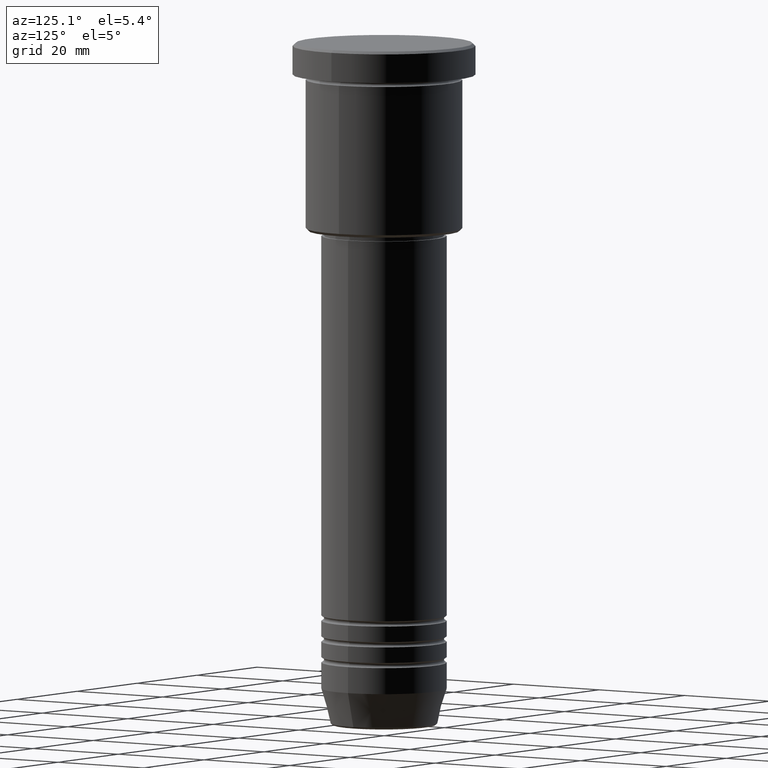
[diagram: clean part render]
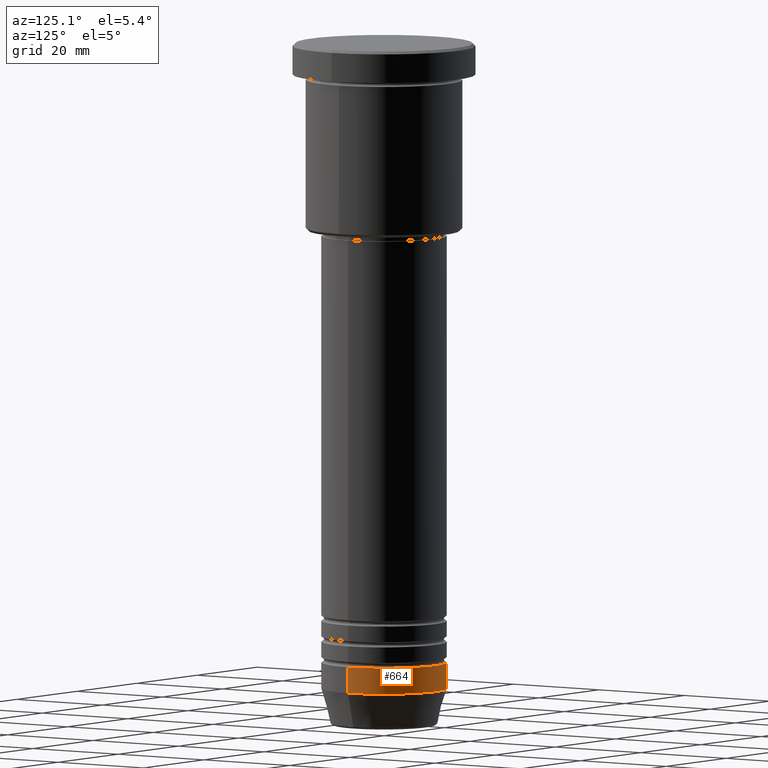
[diagram: same view with one face highlighted and labeled with its STEP entity id]
A machine part, auxiliary view. The second image highlights one B-rep face of the part: STEP entity #664.
In plain terms, the highlighted cylindrical surface (partial cylindrical patch) has radius 12 mm, axis along (-0, -0, 1).
Its self-contained STEP definition (entity closure, byte-faithful):
#8 = CARTESIAN_POINT ( 'NONE',  ( -12.00000000000000000, 1.469576158976823947E-15, 0.000000000000000000 ) ) ;
#19 = EDGE_CURVE ( 'NONE', #992, #957, #338, .T. ) ;
#20 = VERTEX_POINT ( 'NONE', #1011 ) ;
#84 = ORIENTED_EDGE ( 'NONE', *, *, #312, .F. ) ;
#174 = DIRECTION ( 'NONE',  ( 1.000000000000000000, 0.000000000000000000, 0.000000000000000000 ) ) ;
#187 = ORIENTED_EDGE ( 'NONE', *, *, #19, .F. ) ;
#218 = AXIS2_PLACEMENT_3D ( 'NONE', #566, #391, #174 ) ;
#227 = CARTESIAN_POINT ( 'NONE',  ( 0.000000000000000000, 0.000000000000000000, 0.000000000000000000 ) ) ;
#246 = CARTESIAN_POINT ( 'NONE',  ( -12.00000000000000000, 1.469576158976823947E-15, -124.0000000000000000 ) ) ;
#251 = AXIS2_PLACEMENT_3D ( 'NONE', #851, #403, #785 ) ;
#312 = EDGE_CURVE ( 'NONE', #20, #992, #702, .T. ) ;
#326 = CARTESIAN_POINT ( 'NONE',  ( 12.00000000000000000, 0.000000000000000000, 0.000000000000000000 ) ) ;
#338 = CIRCLE ( 'NONE', #218, 12.00000000000000000 ) ;
#381 = ORIENTED_EDGE ( 'NONE', *, *, #502, .T. ) ;
#391 = DIRECTION ( 'NONE',  ( -0.000000000000000000, -0.000000000000000000, 1.000000000000000000 ) ) ;
#403 = DIRECTION ( 'NONE',  ( -0.000000000000000000, -0.000000000000000000, 1.000000000000000000 ) ) ;
#502 = EDGE_CURVE ( 'NONE', #755, #957, #1099, .T. ) ;
#566 = CARTESIAN_POINT ( 'NONE',  ( 0.000000000000000000, 0.000000000000000000, -119.0000000000000000 ) ) ;
#596 = VECTOR ( 'NONE', #616, 1000.000000000000000 ) ;
#616 = DIRECTION ( 'NONE',  ( -0.000000000000000000, -0.000000000000000000, 1.000000000000000000 ) ) ;
#636 = DIRECTION ( 'NONE',  ( -0.000000000000000000, -0.000000000000000000, 1.000000000000000000 ) ) ;
#664 = ADVANCED_FACE ( 'NONE', ( #685 ), #1057, .T. ) ;
#685 = FACE_OUTER_BOUND ( 'NONE', #725, .T. ) ;
#702 = LINE ( 'NONE', #326, #596 ) ;
#725 = EDGE_LOOP ( 'NONE', ( #931, #381, #187, #84 ) ) ;
#755 = VERTEX_POINT ( 'NONE', #246 ) ;
#785 = DIRECTION ( 'NONE',  ( 1.000000000000000000, 0.000000000000000000, 0.000000000000000000 ) ) ;
#851 = CARTESIAN_POINT ( 'NONE',  ( 0.000000000000000000, 0.000000000000000000, -124.0000000000000000 ) ) ;
#854 = DIRECTION ( 'NONE',  ( -0.000000000000000000, -0.000000000000000000, 1.000000000000000000 ) ) ;
#856 = CARTESIAN_POINT ( 'NONE',  ( -12.00000000000000000, 1.469576158976823947E-15, -119.0000000000000000 ) ) ;
#857 = AXIS2_PLACEMENT_3D ( 'NONE', #227, #854, #1131 ) ;
#931 = ORIENTED_EDGE ( 'NONE', *, *, #1000, .T. ) ;
#957 = VERTEX_POINT ( 'NONE', #856 ) ;
#977 = CIRCLE ( 'NONE', #251, 12.00000000000000000 ) ;
#992 = VERTEX_POINT ( 'NONE', #1144 ) ;
#1000 = EDGE_CURVE ( 'NONE', #20, #755, #977, .T. ) ;
#1011 = CARTESIAN_POINT ( 'NONE',  ( 12.00000000000000000, 0.000000000000000000, -124.0000000000000000 ) ) ;
#1057 = CYLINDRICAL_SURFACE ( 'NONE', #857, 12.00000000000000000 ) ;
#1099 = LINE ( 'NONE', #8, #1157 ) ;
#1131 = DIRECTION ( 'NONE',  ( 1.000000000000000000, 0.000000000000000000, 0.000000000000000000 ) ) ;
#1144 = CARTESIAN_POINT ( 'NONE',  ( 12.00000000000000000, 0.000000000000000000, -119.0000000000000000 ) ) ;
#1157 = VECTOR ( 'NONE', #636, 1000.000000000000000 ) ;